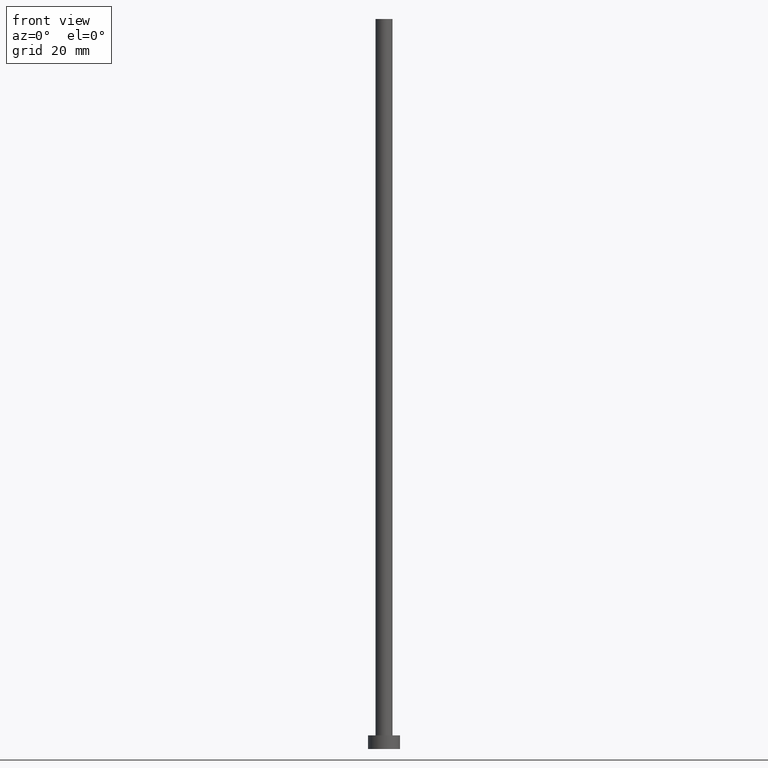
[diagram: clean part render]
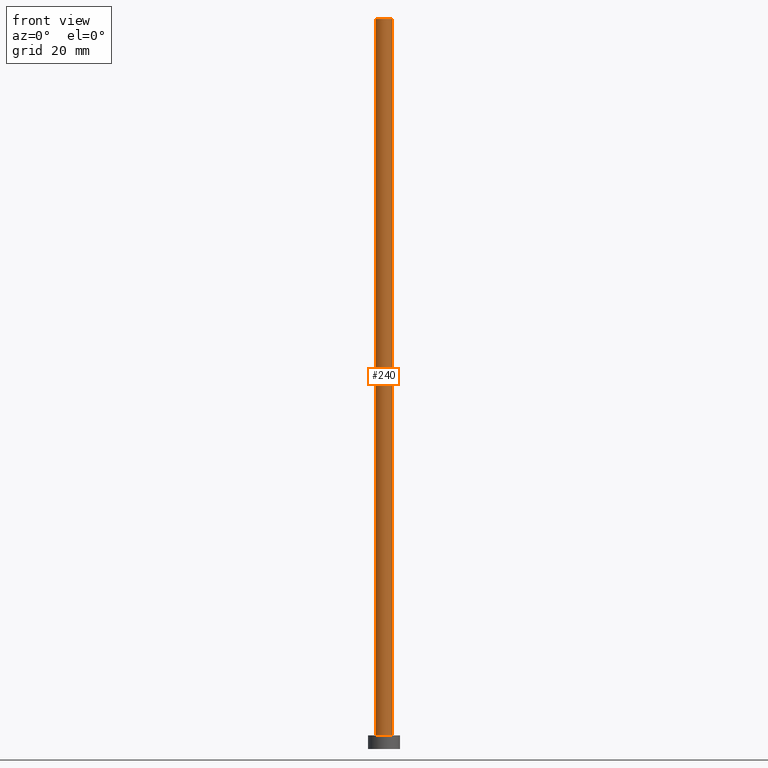
[diagram: same view with one face highlighted and labeled with its STEP entity id]
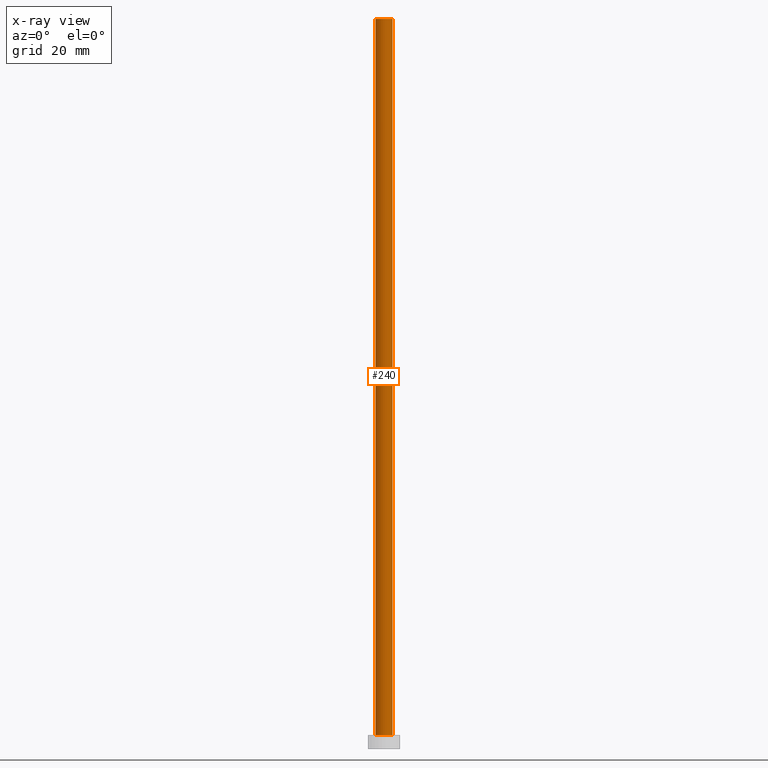
[diagram: x-ray of the same camera — body ghosted, the highlighted face saturated]
A machine part, front view. The second image highlights one B-rep face of the part: STEP entity #240.
The next image is the same camera in x-ray: the body ghosted, the highlighted face saturated — about 0% of this face is hidden behind the body in this view.
In plain terms, the highlighted cylindrical surface (edge-blend (fillet) strip) has radius 1.85 mm, axis along (-0, -0, -1).
Its self-contained STEP definition (entity closure, byte-faithful):
#9 = LINE ( 'NONE', #103, #110 ) ;
#15 = CARTESIAN_POINT ( 'NONE',  ( 0.000000000000000000, 0.000000000000000000, 3.000000000000000000 ) ) ;
#17 = DIRECTION ( 'NONE',  ( 0.000000000000000000, 0.000000000000000000, 1.000000000000000000 ) ) ;
#19 = CARTESIAN_POINT ( 'NONE',  ( 0.000000000000000000, 0.000000000000000000, 160.0000000000000000 ) ) ;
#24 = VERTEX_POINT ( 'NONE', #191 ) ;
#25 = CIRCLE ( 'NONE', #125, 1.850000000000000089 ) ;
#26 = ORIENTED_EDGE ( 'NONE', *, *, #106, .F. ) ;
#32 = FACE_OUTER_BOUND ( 'NONE', #239, .T. ) ;
#50 = CARTESIAN_POINT ( 'NONE',  ( 0.000000000000000000, 0.000000000000000000, 160.0000000000000000 ) ) ;
#54 = EDGE_CURVE ( 'NONE', #204, #75, #9, .T. ) ;
#56 = DIRECTION ( 'NONE',  ( -1.000000000000000000, 0.000000000000000000, 0.000000000000000000 ) ) ;
#57 = DIRECTION ( 'NONE',  ( -0.000000000000000000, -0.000000000000000000, -1.000000000000000000 ) ) ;
#59 = DIRECTION ( 'NONE',  ( 0.000000000000000000, 0.000000000000000000, 1.000000000000000000 ) ) ;
#63 = VERTEX_POINT ( 'NONE', #90 ) ;
#68 = ORIENTED_EDGE ( 'NONE', *, *, #54, .F. ) ;
#69 = DIRECTION ( 'NONE',  ( -0.000000000000000000, -0.000000000000000000, -1.000000000000000000 ) ) ;
#75 = VERTEX_POINT ( 'NONE', #223 ) ;
#80 = CARTESIAN_POINT ( 'NONE',  ( -1.850000000000000089, 0.000000000000000000, 160.0000000000000000 ) ) ;
#85 = VECTOR ( 'NONE', #57, 1000.000000000000000 ) ;
#90 = CARTESIAN_POINT ( 'NONE',  ( -1.850000000000000089, 0.000000000000000000, 3.000000000000000000 ) ) ;
#94 = LINE ( 'NONE', #80, #85 ) ;
#103 = CARTESIAN_POINT ( 'NONE',  ( 1.850000000000000089, 2.265596578422603100E-16, 160.0000000000000000 ) ) ;
#106 = EDGE_CURVE ( 'NONE', #24, #204, #218, .T. ) ;
#107 = DIRECTION ( 'NONE',  ( -0.000000000000000000, -0.000000000000000000, -1.000000000000000000 ) ) ;
#110 = VECTOR ( 'NONE', #69, 1000.000000000000000 ) ;
#113 = CYLINDRICAL_SURFACE ( 'NONE', #202, 1.850000000000000089 ) ;
#125 = AXIS2_PLACEMENT_3D ( 'NONE', #15, #59, #232 ) ;
#159 = DIRECTION ( 'NONE',  ( 1.000000000000000000, 0.000000000000000000, 0.000000000000000000 ) ) ;
#164 = ORIENTED_EDGE ( 'NONE', *, *, #209, .T. ) ;
#188 = EDGE_CURVE ( 'NONE', #24, #63, #94, .T. ) ;
#191 = CARTESIAN_POINT ( 'NONE',  ( -1.850000000000000089, 0.000000000000000000, 160.0000000000000000 ) ) ;
#196 = CARTESIAN_POINT ( 'NONE',  ( 1.850000000000000089, 2.265596578422603100E-16, 160.0000000000000000 ) ) ;
#202 = AXIS2_PLACEMENT_3D ( 'NONE', #50, #107, #56 ) ;
#204 = VERTEX_POINT ( 'NONE', #196 ) ;
#207 = AXIS2_PLACEMENT_3D ( 'NONE', #19, #17, #159 ) ;
#209 = EDGE_CURVE ( 'NONE', #63, #75, #25, .T. ) ;
#218 = CIRCLE ( 'NONE', #207, 1.850000000000000089 ) ;
#223 = CARTESIAN_POINT ( 'NONE',  ( 1.850000000000000089, 2.265596578422603100E-16, 3.000000000000000000 ) ) ;
#232 = DIRECTION ( 'NONE',  ( 1.000000000000000000, 0.000000000000000000, 0.000000000000000000 ) ) ;
#239 = EDGE_LOOP ( 'NONE', ( #68, #26, #243, #164 ) ) ;
#240 = ADVANCED_FACE ( 'NONE', ( #32 ), #113, .T. ) ;
#243 = ORIENTED_EDGE ( 'NONE', *, *, #188, .T. ) ;